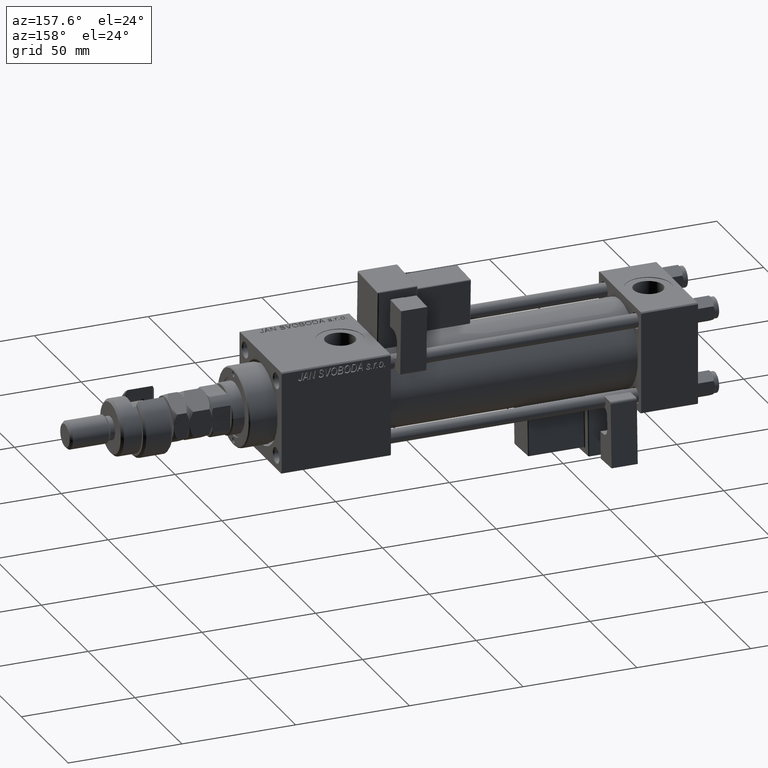
[diagram: clean part render]
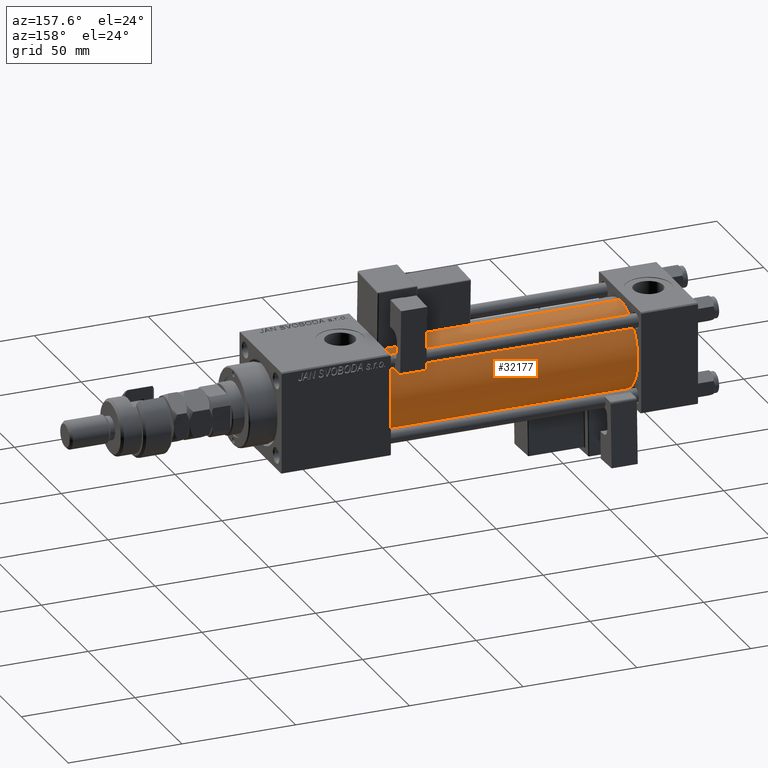
[diagram: same view with one face highlighted and labeled with its STEP entity id]
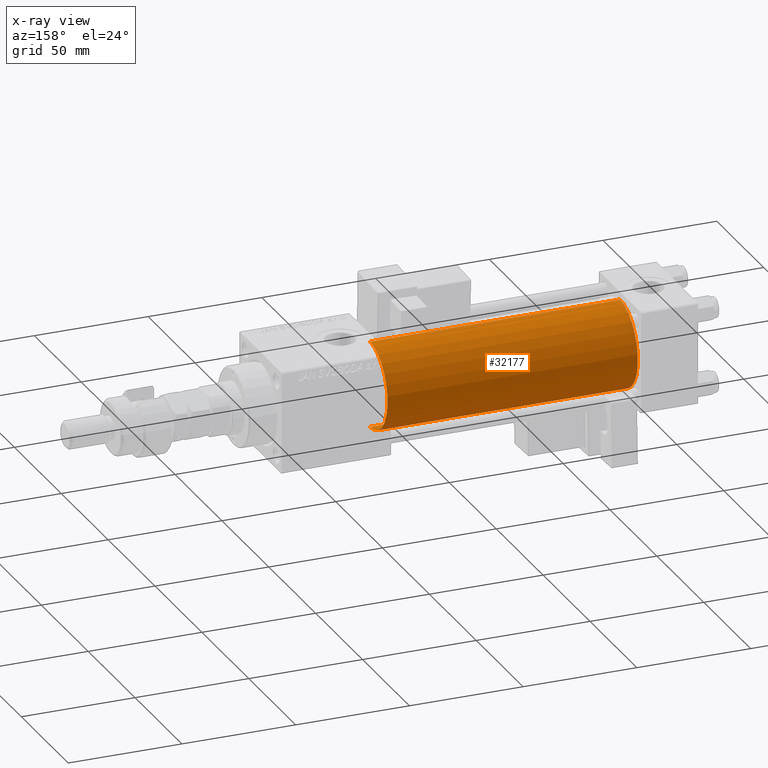
[diagram: x-ray of the same camera — body ghosted, the highlighted face saturated]
A machine part, auxiliary view. The second image highlights one B-rep face of the part: STEP entity #32177.
The next image is the same camera in x-ray: the body ghosted, the highlighted face saturated — about 0% of this face is hidden behind the body in this view.
In plain terms, the highlighted cylindrical surface (partial cylindrical patch) has radius 19 mm, axis along (-1, -0, -0).
Its self-contained STEP definition (entity closure, byte-faithful):
#727 = DIRECTION ( 'NONE',  ( -1.000000000000000000, -0.000000000000000000, -0.000000000000000000 ) ) ;
#4134 = CARTESIAN_POINT ( 'NONE',  ( 135.0000000000000000, -2.602085213965210642E-15, 0.000000000000000000 ) ) ;
#4951 = ORIENTED_EDGE ( 'NONE', *, *, #49272, .F. ) ;
#5931 = ORIENTED_EDGE ( 'NONE', *, *, #33137, .F. ) ;
#6063 = VECTOR ( 'NONE', #727, 1000.000000000000000 ) ;
#6135 = LINE ( 'NONE', #11948, #35885 ) ;
#6460 = AXIS2_PLACEMENT_3D ( 'NONE', #4134, #16497, #29639 ) ;
#8706 = ORIENTED_EDGE ( 'NONE', *, *, #42544, .T. ) ;
#10618 = VERTEX_POINT ( 'NONE', #12139 ) ;
#11948 = CARTESIAN_POINT ( 'NONE',  ( 135.0000000000000000, -2.602085213965210642E-15, 19.00000000000000000 ) ) ;
#12139 = CARTESIAN_POINT ( 'NONE',  ( 24.99999999999999289, -2.752562955852396712E-16, -19.00000000000000000 ) ) ;
#12742 = AXIS2_PLACEMENT_3D ( 'NONE', #36357, #22896, #40282 ) ;
#13134 = CARTESIAN_POINT ( 'NONE',  ( 24.99999999999999289, -2.602085213965210642E-15, 19.00000000000000000 ) ) ;
#13209 = CARTESIAN_POINT ( 'NONE',  ( 24.99999999999999289, -2.602085213965210642E-15, 0.000000000000000000 ) ) ;
#16497 = DIRECTION ( 'NONE',  ( -1.000000000000000000, -0.000000000000000000, -0.000000000000000000 ) ) ;
#21630 = DIRECTION ( 'NONE',  ( 0.000000000000000000, 0.000000000000000000, 1.000000000000000000 ) ) ;
#22013 = LINE ( 'NONE', #30709, #6063 ) ;
#22896 = DIRECTION ( 'NONE',  ( 1.000000000000000000, 0.000000000000000000, 0.000000000000000000 ) ) ;
#25819 = DIRECTION ( 'NONE',  ( 1.000000000000000000, -0.000000000000000000, 0.000000000000000000 ) ) ;
#29639 = DIRECTION ( 'NONE',  ( 0.000000000000000000, 0.000000000000000000, 1.000000000000000000 ) ) ;
#30709 = CARTESIAN_POINT ( 'NONE',  ( 135.0000000000000000, -2.752562955852396712E-16, -19.00000000000000000 ) ) ;
#31772 = EDGE_LOOP ( 'NONE', ( #5931, #8706, #47857, #4951 ) ) ;
#32177 = ADVANCED_FACE ( 'NONE', ( #42264 ), #33019, .T. ) ;
#32645 = CARTESIAN_POINT ( 'NONE',  ( 135.0000000000000000, -2.752562955852396712E-16, -19.00000000000000000 ) ) ;
#33019 = CYLINDRICAL_SURFACE ( 'NONE', #6460, 19.00000000000000000 ) ;
#33137 = EDGE_CURVE ( 'NONE', #46153, #39248, #53032, .T. ) ;
#35885 = VECTOR ( 'NONE', #52956, 1000.000000000000000 ) ;
#36357 = CARTESIAN_POINT ( 'NONE',  ( 135.0000000000000000, -2.602085213965210642E-15, 0.000000000000000000 ) ) ;
#36482 = CARTESIAN_POINT ( 'NONE',  ( 135.0000000000000000, -2.602085213965210642E-15, 19.00000000000000000 ) ) ;
#39248 = VERTEX_POINT ( 'NONE', #36482 ) ;
#40282 = DIRECTION ( 'NONE',  ( 0.000000000000000000, 0.000000000000000000, -1.000000000000000000 ) ) ;
#42264 = FACE_OUTER_BOUND ( 'NONE', #31772, .T. ) ;
#42544 = EDGE_CURVE ( 'NONE', #46153, #10618, #22013, .T. ) ;
#44122 = EDGE_CURVE ( 'NONE', #10618, #50553, #52673, .T. ) ;
#45519 = AXIS2_PLACEMENT_3D ( 'NONE', #13209, #25819, #21630 ) ;
#46153 = VERTEX_POINT ( 'NONE', #32645 ) ;
#47857 = ORIENTED_EDGE ( 'NONE', *, *, #44122, .T. ) ;
#49272 = EDGE_CURVE ( 'NONE', #39248, #50553, #6135, .T. ) ;
#50553 = VERTEX_POINT ( 'NONE', #13134 ) ;
#52673 = CIRCLE ( 'NONE', #45519, 19.00000000000000000 ) ;
#52956 = DIRECTION ( 'NONE',  ( -1.000000000000000000, -0.000000000000000000, -0.000000000000000000 ) ) ;
#53032 = CIRCLE ( 'NONE', #12742, 19.00000000000000000 ) ;